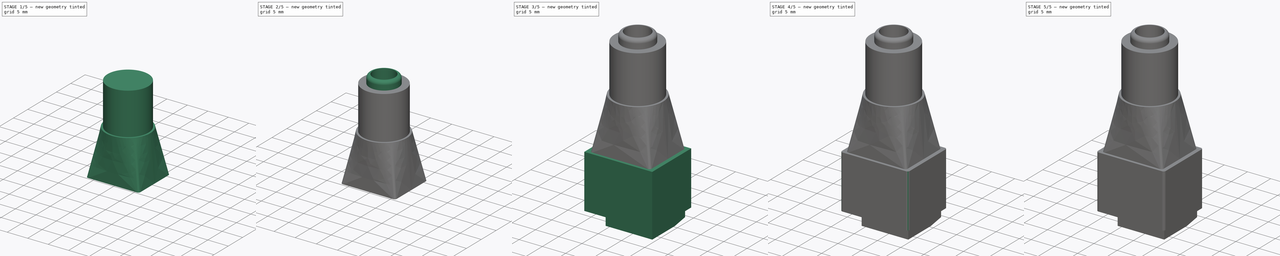
[diagram: build sequence overview — one tinted view per stage of 5, left to right]
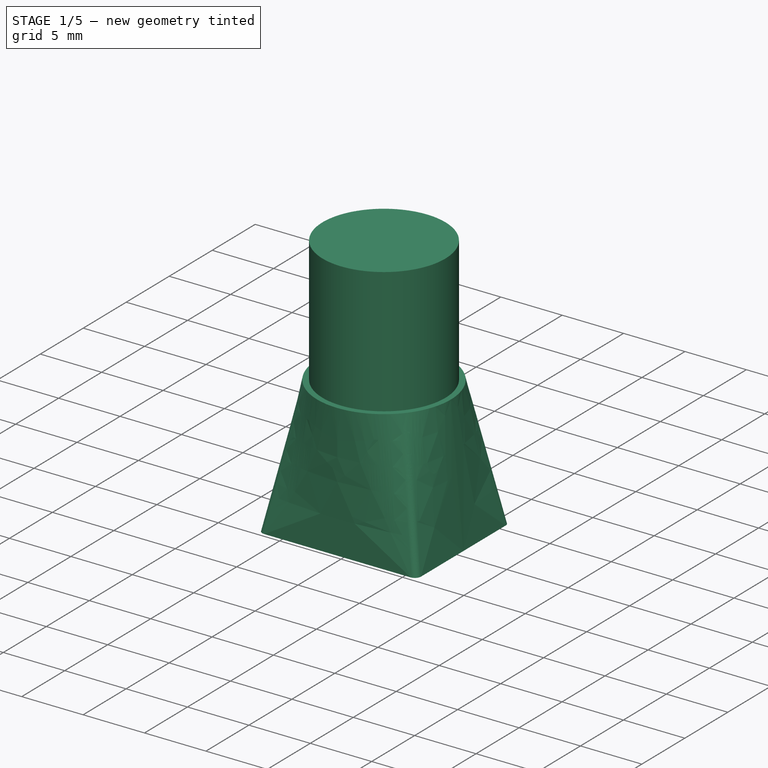
[diagram: stage 1 of 5 — iso view after this stage's code; geometry added in this stage tinted green]
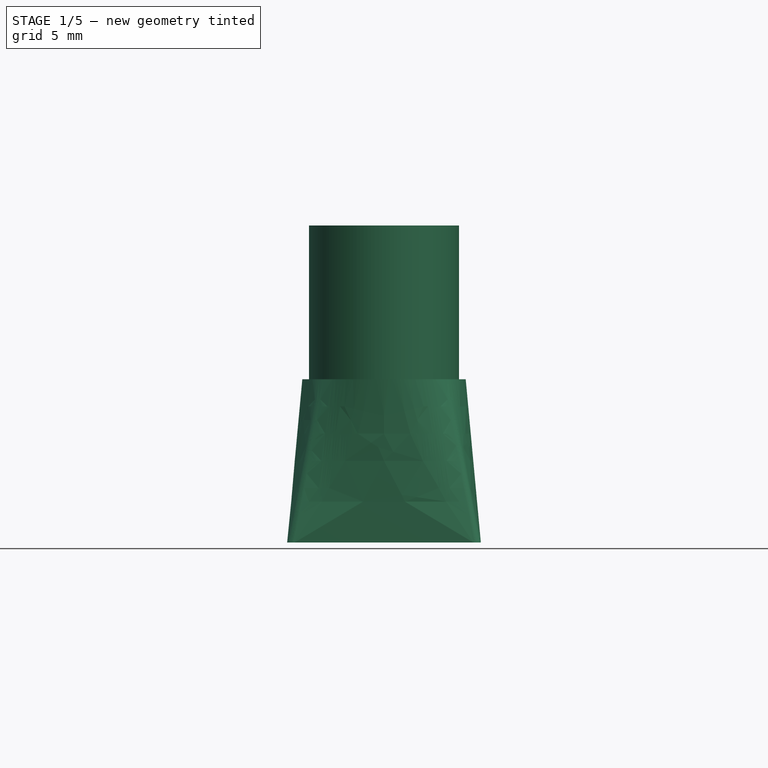
[diagram: stage 1 of 5 — front view after this stage's code; geometry added in this stage tinted green]
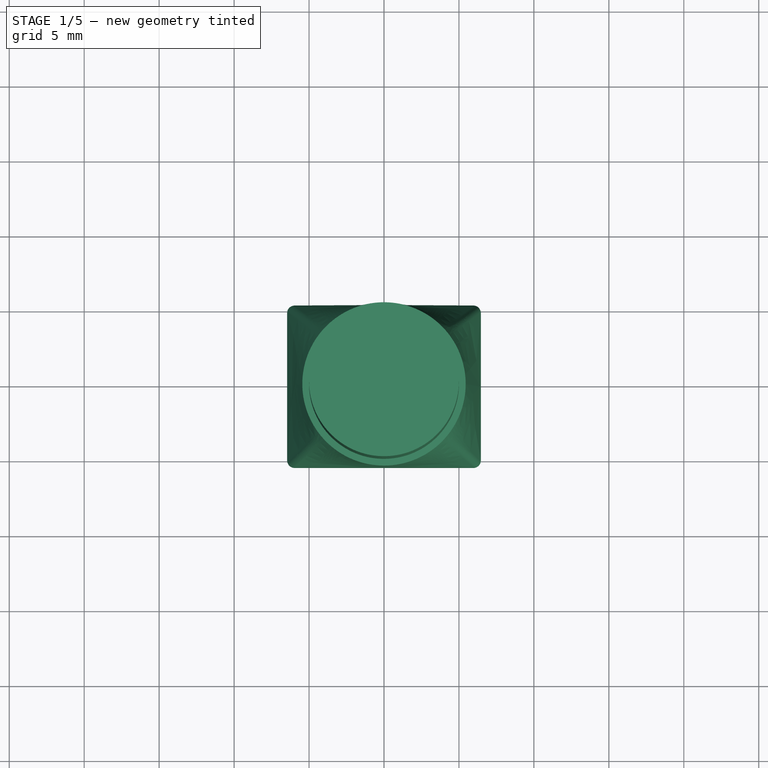
[diagram: stage 1 of 5 — top view after this stage's code; geometry added in this stage tinted green]
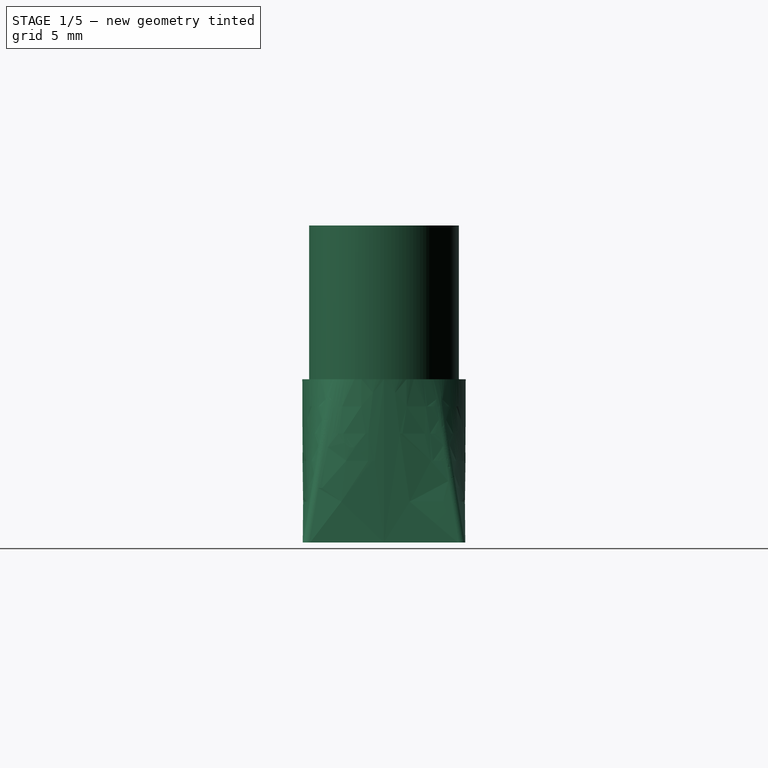
[diagram: stage 1 of 5 — right view after this stage's code; geometry added in this stage tinted green]
FCSTD DOCUMENT  (FreeCAD 0.16R5371 (Git))
Label: alimFemelle
License: All rights reserved
LicenseURL: http://fr.wikipedia.org/wiki/<copyright redacted>
objects: Sketcher::SketchObject×11, PartDesign::Pocket×5, PartDesign::Pad×4, Part::MultiFuse×2, Part::Loft×1, PartDesign::Fillet×1, Part::Fillet×1, PartDesign::Chamfer×1
note: 35 computed .brp shape members not serialized (recipe doc carries the construction recipe); baked Part::Feature solids carry a one-line shape summary decoded from their .brp

FEATURE [Sketcher::SketchObject] Sketch
  sketch-geometry (4):
    g0: LineSegment StartX=-7.3 StartY=5.98 StartZ=0 EndX=7.3 EndY=5.98 EndZ=0
    g1: LineSegment StartX=7.3 StartY=5.98 StartZ=0 EndX=7.3 EndY=-5.98 EndZ=0
    g2: LineSegment StartX=7.3 StartY=-5.98 StartZ=0 EndX=-7.3 EndY=-5.98 EndZ=0
    g3: LineSegment StartX=-7.3 StartY=-5.98 StartZ=0 EndX=-7.3 EndY=5.98 EndZ=0
  constraints (12):
    c: Coincident(g0,g1)
    c: Coincident(g1,g2)
    c: Coincident(g2,g3)
    c: Coincident(g3,g0)
    c: Horizontal(g0)
    c: Horizontal(g2)
    c: Vertical(g1)
    c: Vertical(g3)
    c: DistanceY(g1) = -11.96
    c: DistanceX(g2) = -14.6
    c: Symmetric(g0,g0,g-2)
    c: Symmetric(g0,g1,g-1)
FEATURE [PartDesign::Pad] Pad
  Length = 11.48
  Length2 = 100
  Sketch = -> Sketch
  Type = 0
FEATURE [Sketcher::SketchObject] Sketch001
  Placement = pos=(0,0,11.48) rot=(0,0,1;0rad)
  Support = -> Pad [Face6]
  sketch-geometry (8):
    g0: LineSegment StartX=-5.96 StartY=5.42 StartZ=0 EndX=5.96 EndY=5.42 EndZ=0
    g1: LineSegment StartX=6.46 StartY=4.92 StartZ=0 EndX=6.46 EndY=-4.92 EndZ=0
    g2: LineSegment StartX=5.96 StartY=-5.42 StartZ=0 EndX=-5.96 EndY=-5.42 EndZ=0
    g3: LineSegment StartX=-6.46 StartY=-4.92 StartZ=0 EndX=-6.46 EndY=4.92 EndZ=0
    g4: ArcOfCircle CenterX=-5.96 CenterY=4.92 CenterZ=0 NormalX=0 NormalY=0 NormalZ=1 Radius=0.5 StartAngle=1.5708 EndAngle=3.14159
    g5: ArcOfCircle CenterX=5.96 CenterY=4.92 CenterZ=0 NormalX=0 NormalY=0 NormalZ=1 Radius=0.5 StartAngle=0 EndAngle=1.5708
    g6: ArcOfCircle CenterX=5.96 CenterY=-4.92 CenterZ=0 NormalX=0 NormalY=0 NormalZ=1 Radius=0.5 StartAngle=4.71239 EndAngle=6.28319
    g7: ArcOfCircle CenterX=-5.96 CenterY=-4.92 CenterZ=0 NormalX=0 NormalY=0 NormalZ=1 Radius=0.5 StartAngle=3.14159 EndAngle=4.71239
  constraints (19):
    c: Horizontal(g2)
    c: Vertical(g1)
    c: Vertical(g3)
    c: Tangent(g3,g4) = 1.5708
    c: Tangent(g0,g4) = 1.5708
    c: Tangent(g1,g5) = 1.5708
    c: Tangent(g0,g5) = 1.5708
    c: Tangent(g1,g6) = 1.5708
    c: Tangent(g2,g6) = 1.5708
    c: Tangent(g2,g7) = 1.5708
    c: Tangent(g3,g7) = 1.5708
    c: Radius(g6) = 0.5
    c: Equal(g6,g5)
    c: Equal(g6,g4)
    c: Equal(g6,g7)
    c: Symmetric(g0,g0,g-2)
    c: Symmetric(g0,g2,g-1)
    c: Distance(g3,g1) = 12.92
    c: Distance(g0,g2) = 10.84
FEATURE [Sketcher::SketchObject] Sketch002
  Placement = pos=(0,0,22.37) rot=(0,0,1;0rad)
  sketch-geometry (1):
    g0: Circle CenterX=0 CenterY=0 CenterZ=0 NormalX=0 NormalY=0 NormalZ=1 Radius=5.45
  constraints (2):
    c: Coincident(g0,g-1)
    c: Radius(g0) = 5.45
FEATURE [Part::Loft] Loft
  Closed = false
  Ruled = true
  Sections = -> [Sketch001,Sketch002]
  Solid = true
FEATURE [Sketcher::SketchObject] Sketch003
  Placement = pos=(0,0,22.37) rot=(0,0,1;0rad)
  Support = -> Loft [Face11]
  sketch-geometry (1):
    g0: Circle CenterX=0 CenterY=0 CenterZ=0 NormalX=0 NormalY=0 NormalZ=1 Radius=5
  constraints (2):
    c: Coincident(g0,g-1)
    c: Radius(g0) = 5
FEATURE [PartDesign::Pad] Pad001
  Length = 10.25
  Length2 = 100
  Sketch = -> Sketch003
  Type = 0
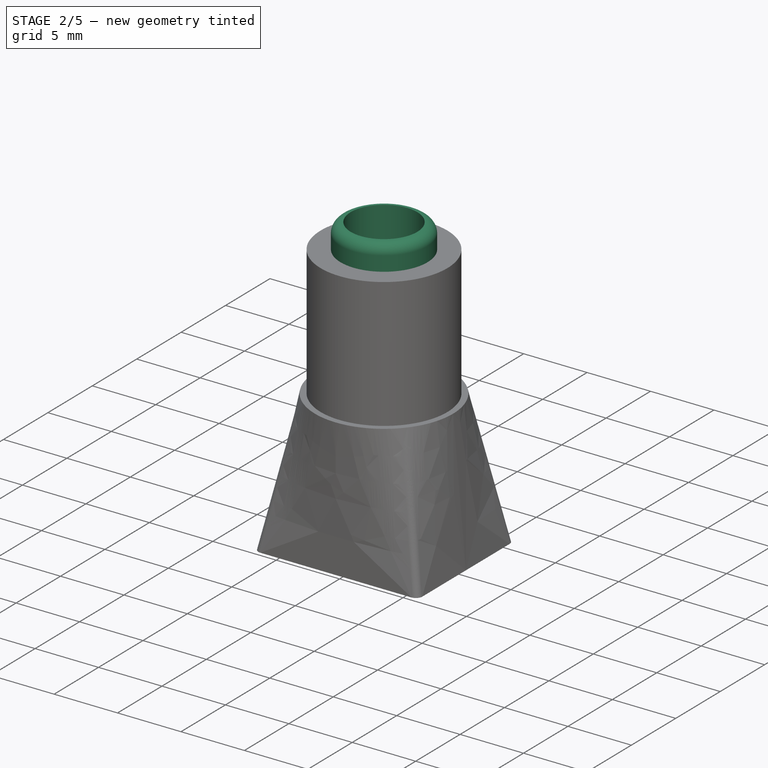
[diagram: stage 2 of 5 — iso view after this stage's code; geometry added in this stage tinted green]
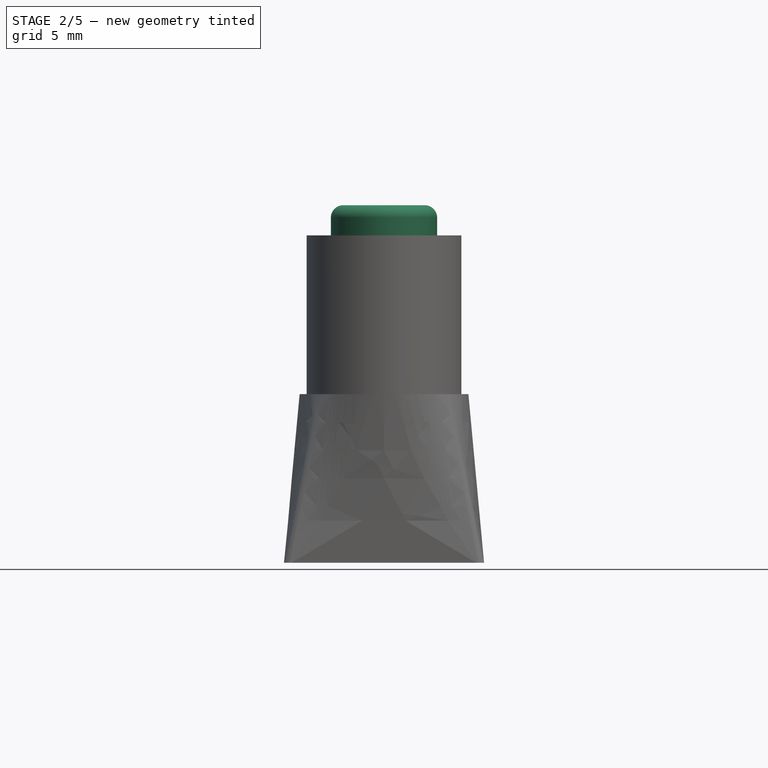
[diagram: stage 2 of 5 — front view after this stage's code; geometry added in this stage tinted green]
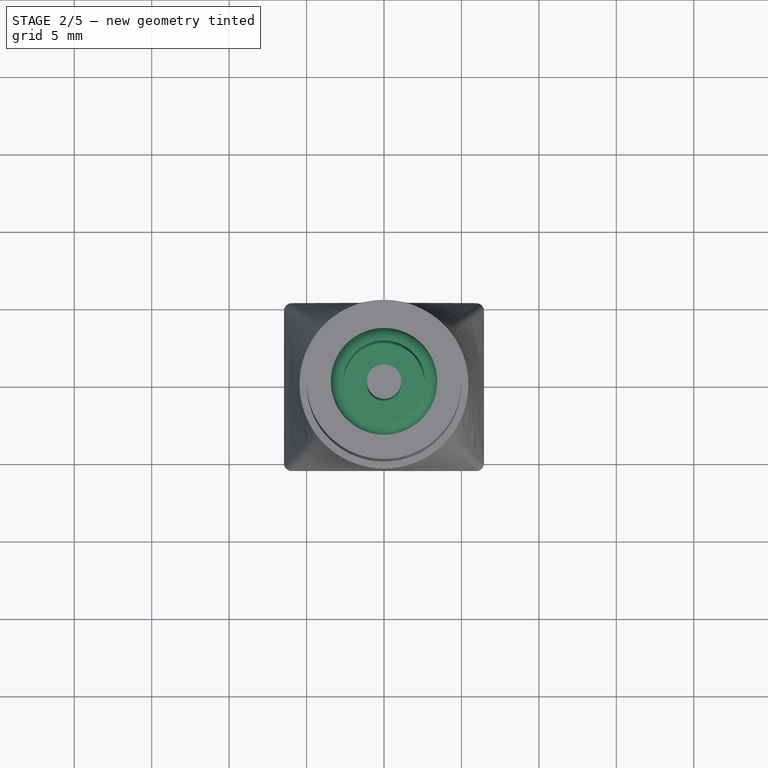
[diagram: stage 2 of 5 — top view after this stage's code; geometry added in this stage tinted green]
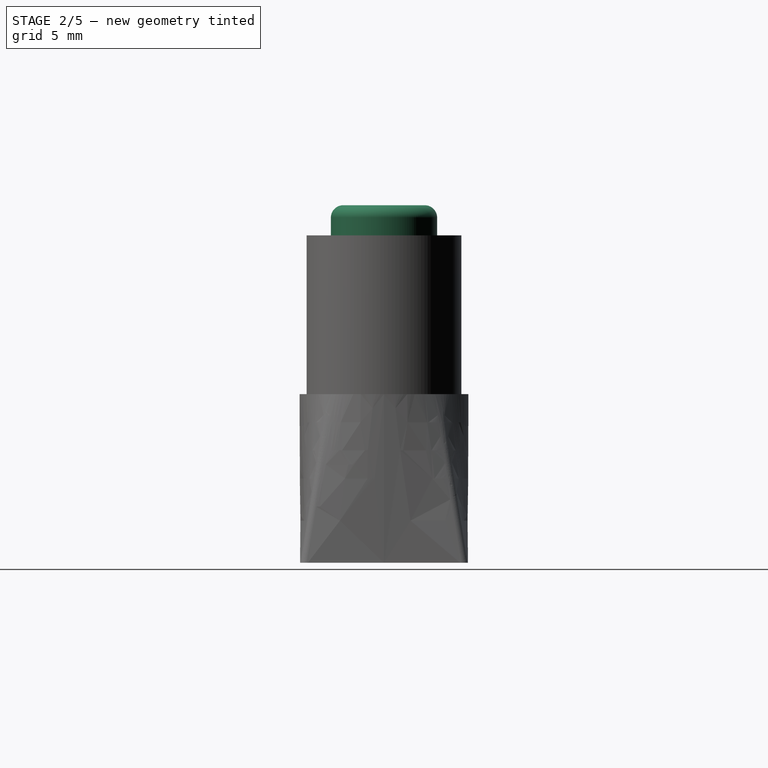
[diagram: stage 2 of 5 — right view after this stage's code; geometry added in this stage tinted green]
FEATURE [Sketcher::SketchObject] Sketch004
  Placement = pos=(0,0,32.62) rot=(0,0,1;0rad)
  Support = -> Pad001 [Face13]
  sketch-geometry (2):
    g0: Circle CenterX=0 CenterY=0 CenterZ=0 NormalX=0 NormalY=0 NormalZ=1 Radius=2.625
    g1: Circle CenterX=0 CenterY=0 CenterZ=0 NormalX=0 NormalY=0 NormalZ=1 Radius=1.11
  constraints (4):
    c: Coincident(g0,g-1)
    c: Radius(g0) = 2.625
    c: Coincident(g1,g-1)
    c: Radius(g1) = 1.11
FEATURE [PartDesign::Pocket] Pocket
  Length = 8
  Sketch = -> Sketch004
  Type = 0
FEATURE [Sketcher::SketchObject] Sketch005
  ExternalGeometry = -> [Pocket]
  Placement = pos=(0,0,32.62) rot=(0,0,1;0rad)
  Support = -> Pocket [Face13]
  sketch-geometry (2):
    g0: Circle CenterX=0 CenterY=0 CenterZ=0 NormalX=0 NormalY=0 NormalZ=1 Radius=2.625
    g1: Circle CenterX=0 CenterY=0 CenterZ=0 NormalX=0 NormalY=0 NormalZ=1 Radius=3.43
  constraints (4):
    c: Coincident(g0,g-1)
    c: Equal(g0,g-3)
    c: Coincident(g1,g-1)
    c: Radius(g1) = 3.43
FEATURE [PartDesign::Pad] Pad002
  Length = 1.95
  Length2 = 100
  Sketch = -> Sketch005
  Type = 0
FEATURE [PartDesign::Fillet] Fillet
  Base = -> Pad002 [Edge33]
  Radius = 0.8
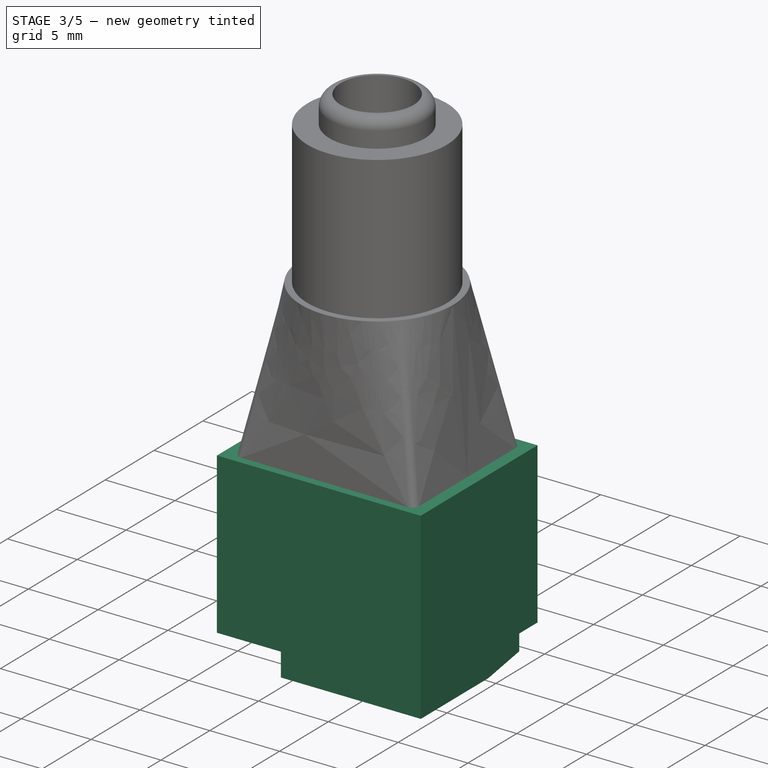
[diagram: stage 3 of 5 — iso view after this stage's code; geometry added in this stage tinted green]
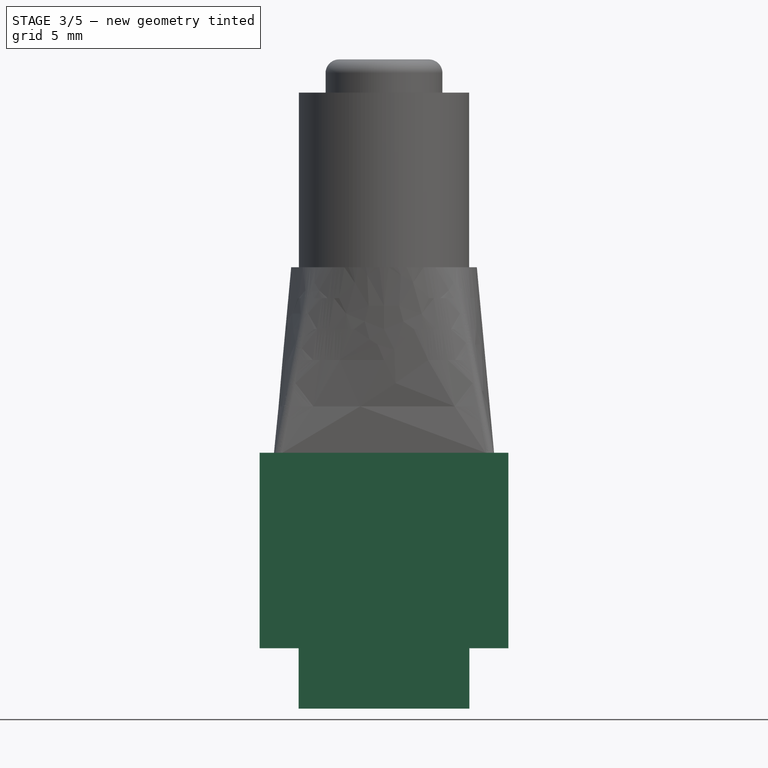
[diagram: stage 3 of 5 — front view after this stage's code; geometry added in this stage tinted green]
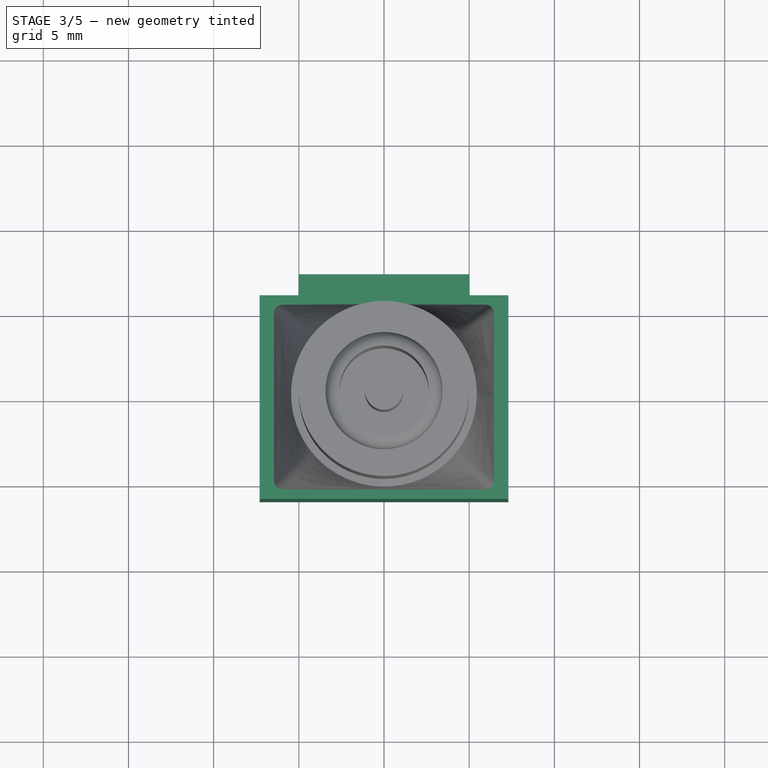
[diagram: stage 3 of 5 — top view after this stage's code; geometry added in this stage tinted green]
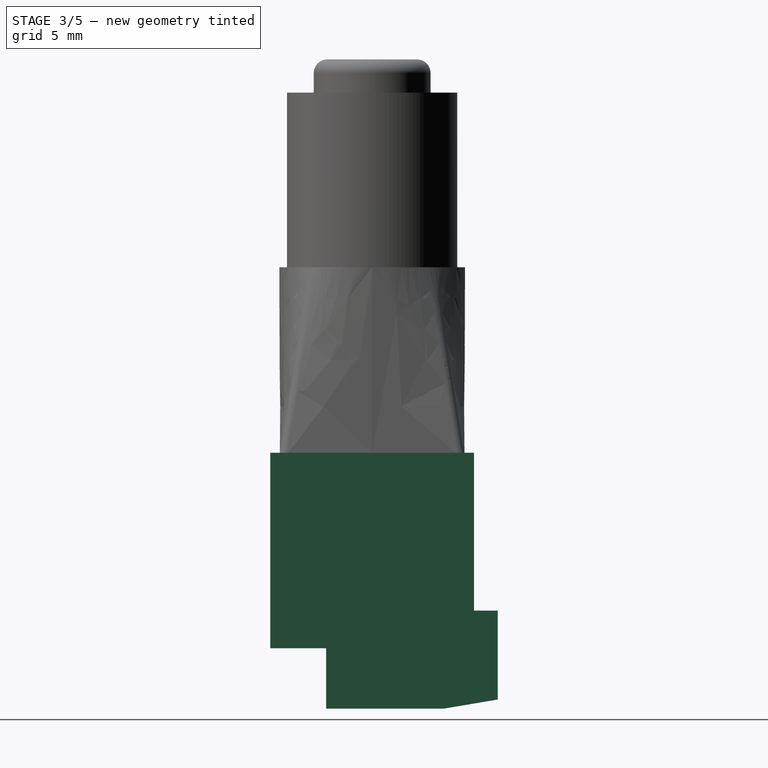
[diagram: stage 3 of 5 — right view after this stage's code; geometry added in this stage tinted green]
FEATURE [Sketcher::SketchObject] Sketch006
  ExternalGeometry = -> [Pad]
  Placement = pos=(0,0,2.21) rot=(1,0,0;3.14159rad)
  sketch-geometry (4):
    g0: LineSegment StartX=-5.015 StartY=2.7 StartZ=0 EndX=5.015 EndY=2.7 EndZ=0
    g1: LineSegment StartX=5.015 StartY=2.7 StartZ=0 EndX=5.015 EndY=-7.37 EndZ=0
    g2: LineSegment StartX=5.015 StartY=-7.37 StartZ=0 EndX=-5.015 EndY=-7.37 EndZ=0
    g3: LineSegment StartX=-5.015 StartY=-7.37 StartZ=0 EndX=-5.015 EndY=2.7 EndZ=0
  constraints (12):
    c: Coincident(g0,g1)
    c: Coincident(g1,g2)
    c: Coincident(g2,g3)
    c: Coincident(g3,g0)
    c: Horizontal(g0)
    c: Horizontal(g2)
    c: Vertical(g1)
    c: Vertical(g3)
    c: Symmetric(g0,g0,g-2)
    c: Distance(g0,g-3) = 3.28
    c: DistanceX(g0) = 10.03
    c: DistanceY(g1) = -10.07
FEATURE [PartDesign::Pad] Pad003
  Length = 5.75
  Length2 = 100
  Placement = pos=(0,0,2.21) rot=(1,0,0;3.14159rad)
  Sketch = -> Sketch006
  Type = 0
FEATURE [Sketcher::SketchObject] Sketch007
  ExternalGeometry = -> [Pad003]
  Placement = pos=(-5.015,0,2.21) rot=(0.57735,0.57735,-0.57735;4.18879rad)
  Support = -> Pad003 [Face4]
  sketch-geometry (6):
    g0: LineSegment [constr] StartX=-2.7 StartY=5.75 StartZ=0 EndX=4.22 EndY=5.75 EndZ=0
    g1: LineSegment [constr] StartX=7.37 StartY=0 StartZ=0 EndX=7.37 EndY=5.22 EndZ=0
    g2: LineSegment StartX=15 StartY=3.93622 StartZ=0 EndX=0 EndY=6.46003 EndZ=0
    g3: LineSegment StartX=15 StartY=3.93622 StartZ=0 EndX=15 EndY=8.93622 EndZ=0
    g4: LineSegment StartX=15 StartY=8.93622 StartZ=0 EndX=0 EndY=8.93622 EndZ=0
    g5: LineSegment StartX=0 StartY=8.93622 StartZ=0 EndX=0 EndY=6.46003 EndZ=0
  constraints (18):
    c: Coincident(g0,g-4)
    c: Horizontal(g0)
    c: Coincident(g1,g-3)
    c: PointOnObject(g1,g-3)
    c: DistanceY(g-1,g1) = 5.22
    c: Distance(g0,g-4) = 6.92
    c: PointOnObject(g1,g2)
    c: PointOnObject(g0,g2)
    c: Vertical(g3)
    c: Coincident(g3,g4)
    c: Horizontal(g4)
    c: Coincident(g4,g5)
    c: Coincident(g3,g2)
    c: Vertical(g5)
    c: Coincident(g5,g2)
    c: Distance(g4) = 15
    c: Distance(g3) = 5
    c: PointOnObject(g4,g-2)
FEATURE [PartDesign::Pocket] Pocket001
  Length = 5
  Placement = pos=(0,0,2.21) rot=(1,0,0;3.14159rad)
  Sketch = -> Sketch007
  Type = 1
FEATURE [Part::MultiFuse] Fusion
  Shapes = -> [Pad,Fillet]
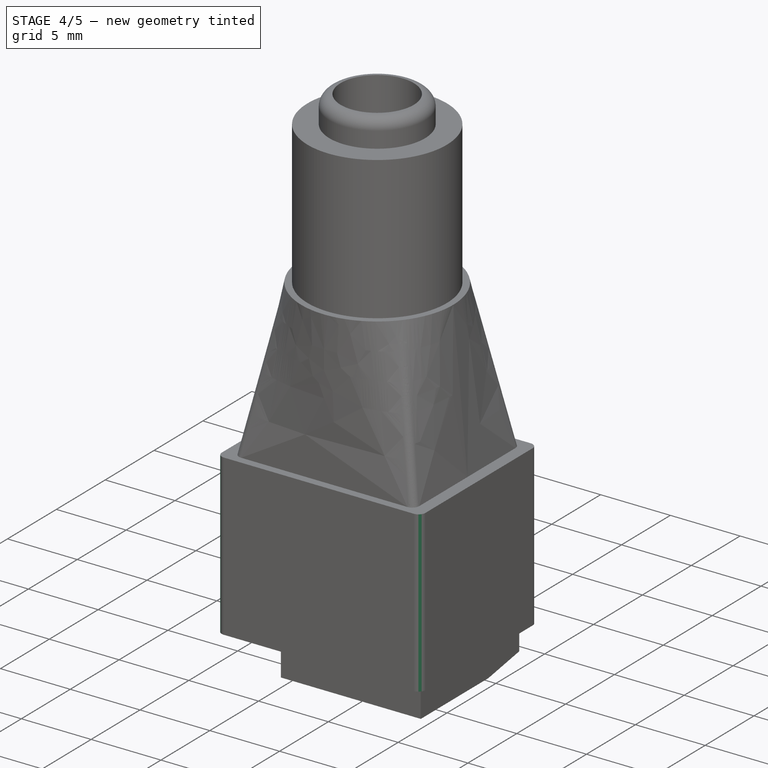
[diagram: stage 4 of 5 — iso view after this stage's code; geometry added in this stage tinted green]
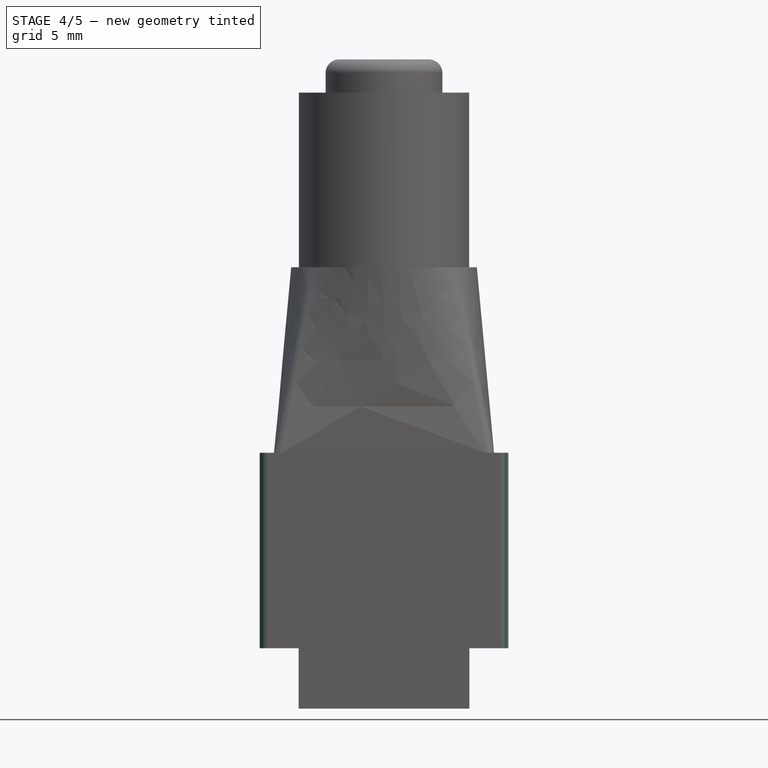
[diagram: stage 4 of 5 — front view after this stage's code; geometry added in this stage tinted green]
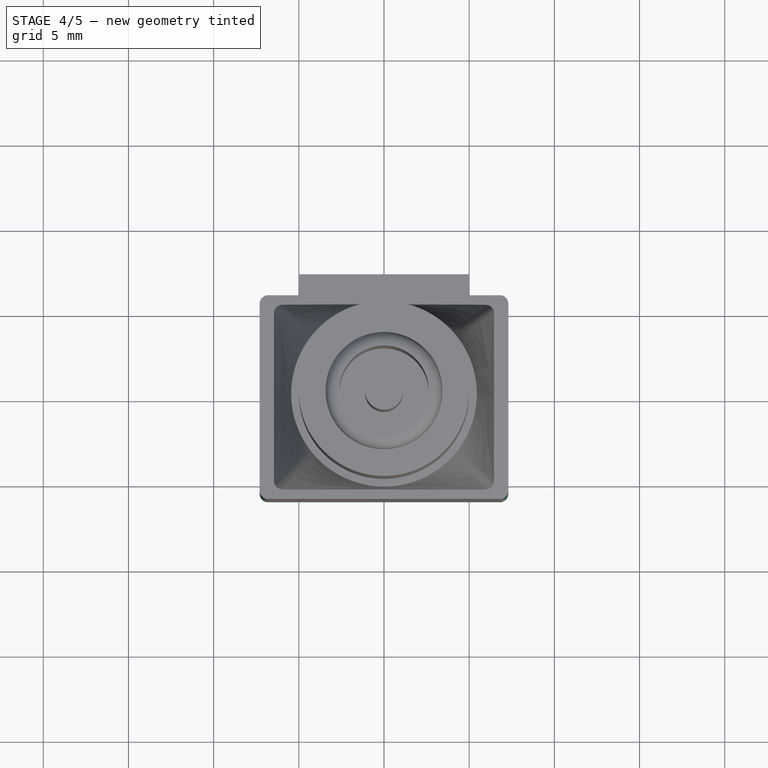
[diagram: stage 4 of 5 — top view after this stage's code; geometry added in this stage tinted green]
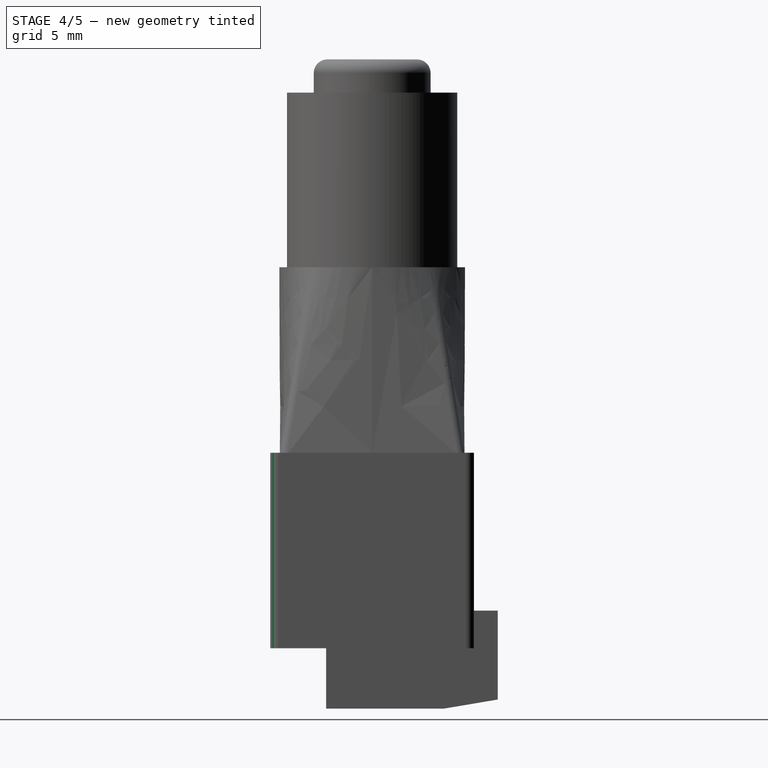
[diagram: stage 4 of 5 — right view after this stage's code; geometry added in this stage tinted green]
FEATURE [Part::MultiFuse] Fusion001
  Shapes = -> [Pocket001,Fusion]
FEATURE [Part::Fillet] Fillet001
  Base = -> Fusion001
  Edges = 4 edges r=0.5: [Edge23,Edge25,Edge29,Edge42]
FEATURE [Sketcher::SketchObject] Sketch008
  ExternalGeometry = -> [Fillet001]
  Placement = pos=(0,7.37,0) rot=(0,0.707107,0.707107;3.14159rad)
  Support = -> Fillet001 [Face17]
  sketch-geometry (5):
    g0: LineSegment [constr] StartX=-2.5075 StartY=2.21 StartZ=0 EndX=-2.5075 EndY=-3.01 EndZ=0
    g1: LineSegment [constr] StartX=2.5075 StartY=2.21 StartZ=0 EndX=2.5075 EndY=-3.01 EndZ=0
    g2: GeomPoint [constr] X=0 Y=2.21 Z=0
    g3: Circle CenterX=-2.5075 CenterY=-0.4 CenterZ=0 NormalX=0 NormalY=0 NormalZ=1 Radius=1.815
    g4: Circle CenterX=2.5075 CenterY=-0.4 CenterZ=0 NormalX=0 NormalY=0 NormalZ=1 Radius=1.815
  constraints (15):
    c: Vertical(g0)
    c: Vertical(g1)
    c: PointOnObject(g2,g-2)
    c: PointOnObject(g0,g-3)
    c: PointOnObject(g0,g-4)
    c: PointOnObject(g1,g-3)
    c: PointOnObject(g1,g-4)
    c: PointOnObject(g3,g0)
    c: Symmetric(g-3,g2,g0)
    c: Symmetric(g0,g0,g3)
    c: PointOnObject(g4,g1)
    c: Symmetric(g2,g-3,g1)
    c: Symmetric(g1,g1,g4)
    c: Radius(g4) = 1.815
    c: Equal(g4,g3)
FEATURE [PartDesign::Pocket] Pocket002
  Length = 2
  Sketch = -> Sketch008
  Type = 0
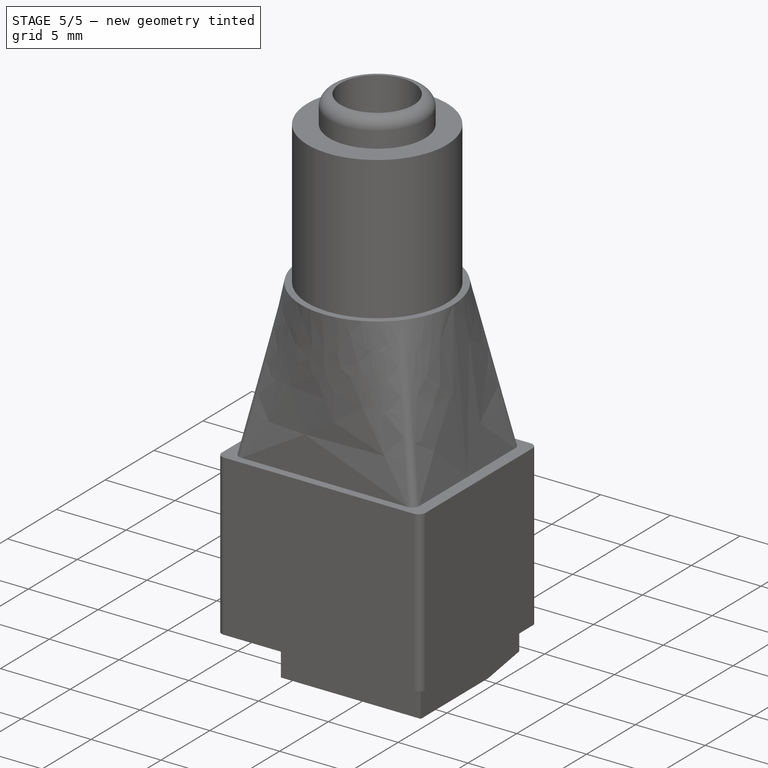
[diagram: stage 5 of 5 — iso view after this stage's code; geometry added in this stage tinted green]
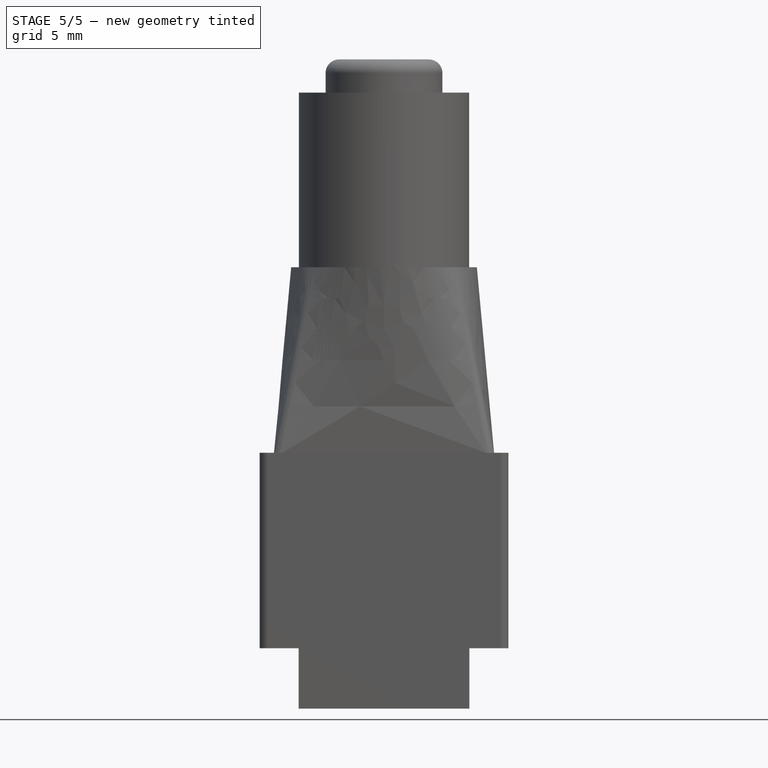
[diagram: stage 5 of 5 — front view after this stage's code; geometry added in this stage tinted green]
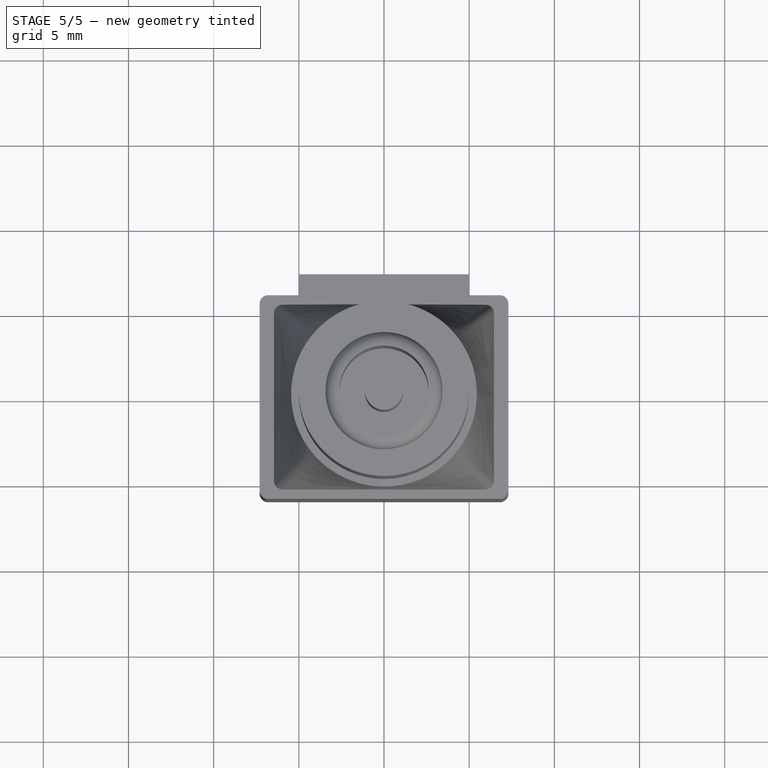
[diagram: stage 5 of 5 — top view after this stage's code; geometry added in this stage tinted green]
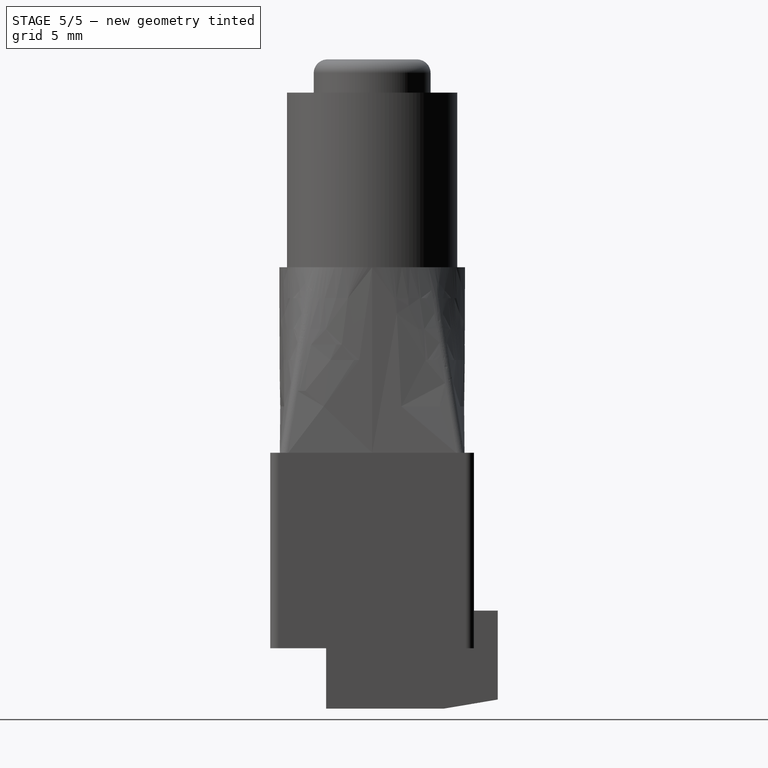
[diagram: stage 5 of 5 — right view after this stage's code; geometry added in this stage tinted green]
FEATURE [Sketcher::SketchObject] Sketch009
  ExternalGeometry = -> [Pocket002]
  Placement = pos=(0,0,-3.54) rot=(1,0,0;3.14159rad)
  Support = -> Pocket002 [Face15]
  sketch-geometry (8):
    g0: LineSegment StartX=-0.465 StartY=2.02 StartZ=0 EndX=-4.605 EndY=2.02 EndZ=0
    g1: LineSegment StartX=-4.605 StartY=2.02 StartZ=0 EndX=-4.605 EndY=-3.4 EndZ=0
    g2: LineSegment StartX=-4.605 StartY=-3.4 StartZ=0 EndX=-0.465 EndY=-3.4 EndZ=0
    g3: LineSegment StartX=-0.465 StartY=-3.4 StartZ=0 EndX=-0.465 EndY=2.02 EndZ=0
    g4: LineSegment StartX=0.465 StartY=2.02 StartZ=0 EndX=4.605 EndY=2.02 EndZ=0
    g5: LineSegment StartX=4.605 StartY=2.02 StartZ=0 EndX=4.605 EndY=-3.4 EndZ=0
    g6: LineSegment StartX=4.605 StartY=-3.4 StartZ=0 EndX=0.465 EndY=-3.4 EndZ=0
    g7: LineSegment StartX=0.465 StartY=-3.4 StartZ=0 EndX=0.465 EndY=2.02 EndZ=0
  constraints (24):
    c: Coincident(g0,g1)
    c: Coincident(g1,g2)
    c: Coincident(g2,g3)
    c: Coincident(g3,g0)
    c: Horizontal(g0)
    c: Horizontal(g2)
    c: Vertical(g1)
    c: Vertical(g3)
    c: Coincident(g4,g5)
    c: Coincident(g5,g6)
    c: Coincident(g6,g7)
    c: Coincident(g7,g4)
    c: Horizontal(g4)
    c: Horizontal(g6)
    c: Vertical(g5)
    c: Vertical(g7)
    c: PointOnObject(g4,g0)
    c: Equal(g3,g7)
    c: DistanceY(g5) = -5.42
    c: Distance(g4,g-3) = 0.68
    c: Equal(g6,g2)
    c: Symmetric(g4,g0,g-2)
    c: Distance(g6) = 4.14
    c: Distance(g-3,g5) = 0.41
FEATURE [PartDesign::Pocket] Pocket003
  Length = 0.67
  Sketch = -> Sketch009
  Type = 0
FEATURE [PartDesign::Chamfer] Chamfer
  Base = -> Pocket003 [Edge58,Edge54]
  Size = 0.65
FEATURE [Sketcher::SketchObject] Sketch010
  ExternalGeometry = -> [Chamfer]
  Placement = pos=(0,0,-2.87) rot=(1,0,0;3.14159rad)
  Support = -> Chamfer [Face15]
  sketch-geometry (8):
    g0: LineSegment StartX=-3.985 StartY=1.69 StartZ=0 EndX=-1.185 EndY=1.69 EndZ=0
    g1: LineSegment StartX=-1.185 StartY=1.69 StartZ=0 EndX=-1.185 EndY=-0.38 EndZ=0
    g2: LineSegment StartX=-1.185 StartY=-0.38 StartZ=0 EndX=-3.985 EndY=-0.38 EndZ=0
    g3: LineSegment StartX=-3.985 StartY=-0.38 StartZ=0 EndX=-3.985 EndY=1.69 EndZ=0
    g4: LineSegment StartX=1.185 StartY=1.69 StartZ=0 EndX=3.985 EndY=1.69 EndZ=0
    g5: LineSegment StartX=3.985 StartY=1.69 StartZ=0 EndX=3.985 EndY=-0.38 EndZ=0
    g6: LineSegment StartX=3.985 StartY=-0.38 StartZ=0 EndX=1.185 EndY=-0.38 EndZ=0
    g7: LineSegment StartX=1.185 StartY=-0.38 StartZ=0 EndX=1.185 EndY=1.69 EndZ=0
  constraints (24):
    c: Coincident(g0,g1)
    c: Coincident(g1,g2)
    c: Coincident(g2,g3)
    c: Coincident(g3,g0)
    c: Horizontal(g0)
    c: Horizontal(g2)
    c: Vertical(g1)
    c: Vertical(g3)
    c: Coincident(g4,g5)
    c: Coincident(g5,g6)
    c: Coincident(g6,g7)
    c: Coincident(g7,g4)
    c: Horizontal(g4)
    c: Horizontal(g6)
    c: Vertical(g5)
    c: Vertical(g7)
    c: Equal(g1,g7)
    c: Equal(g4,g0)
    c: PointOnObject(g0,g4)
    c: Distance(g0,g-3) = 0.33
    c: Distance(g0,g-5) = 1.03
    c: Symmetric(g0,g4,g-2)
    c: Distance(g0) = 2.8
    c: Distance(g1) = 2.07
FEATURE [PartDesign::Pocket] Pocket004  label="alimFemelle"
  Length = 5
  Sketch = -> Sketch010
  Type = 0
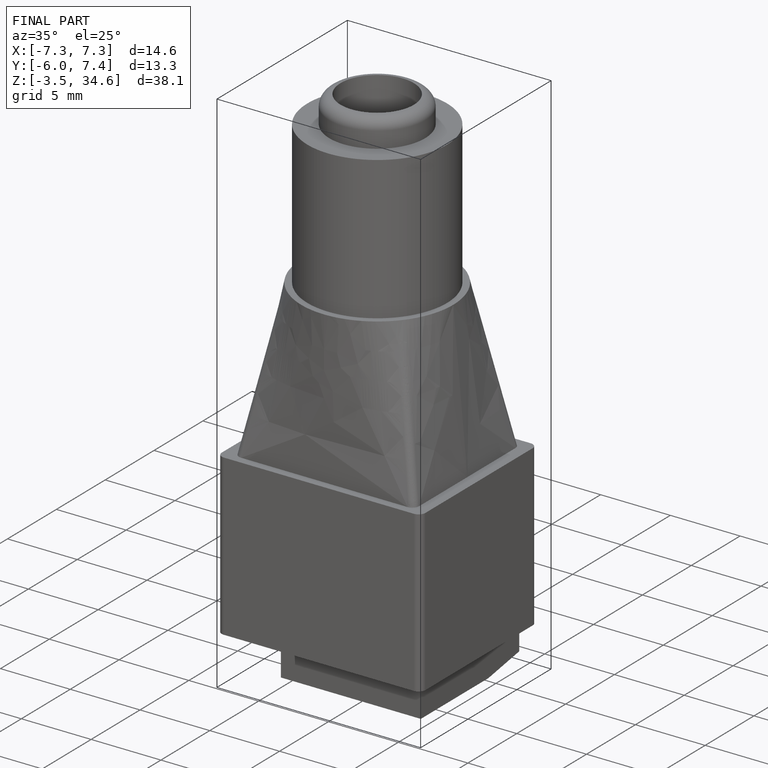
[diagram: finished part — iso view with bounding-box wireframe]
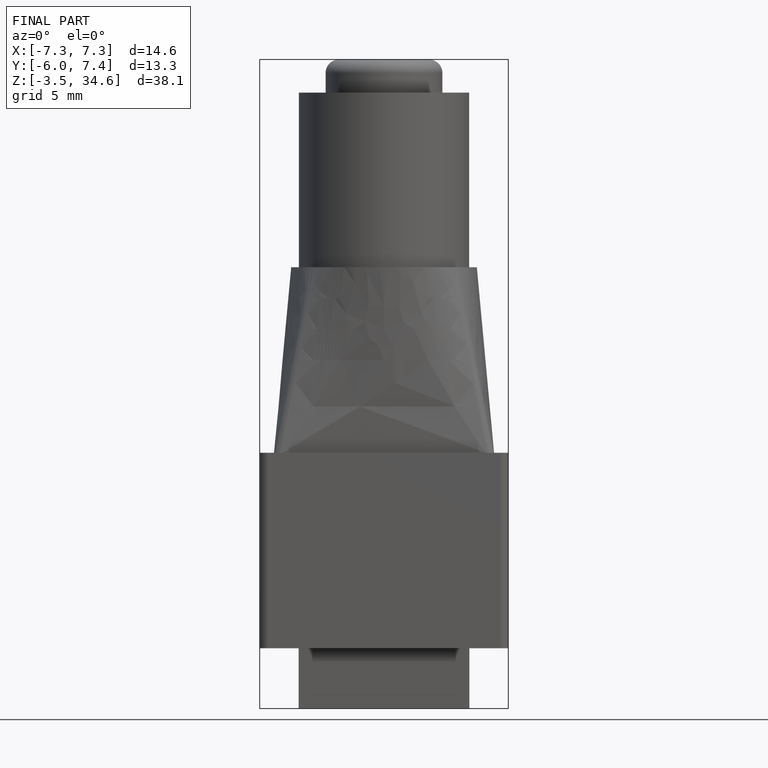
[diagram: finished part — front view with bounding-box wireframe]
